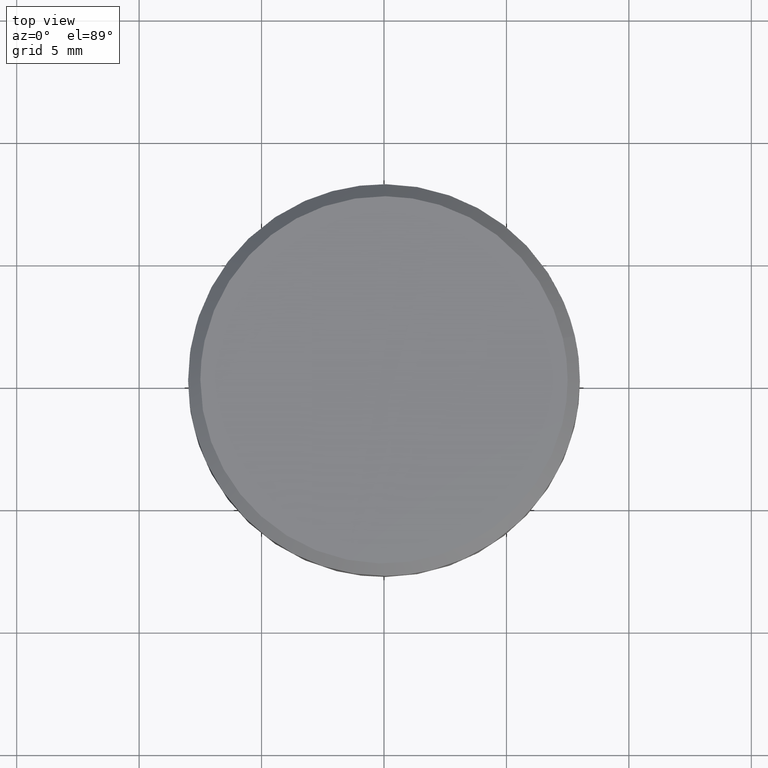
[diagram: clean part render]
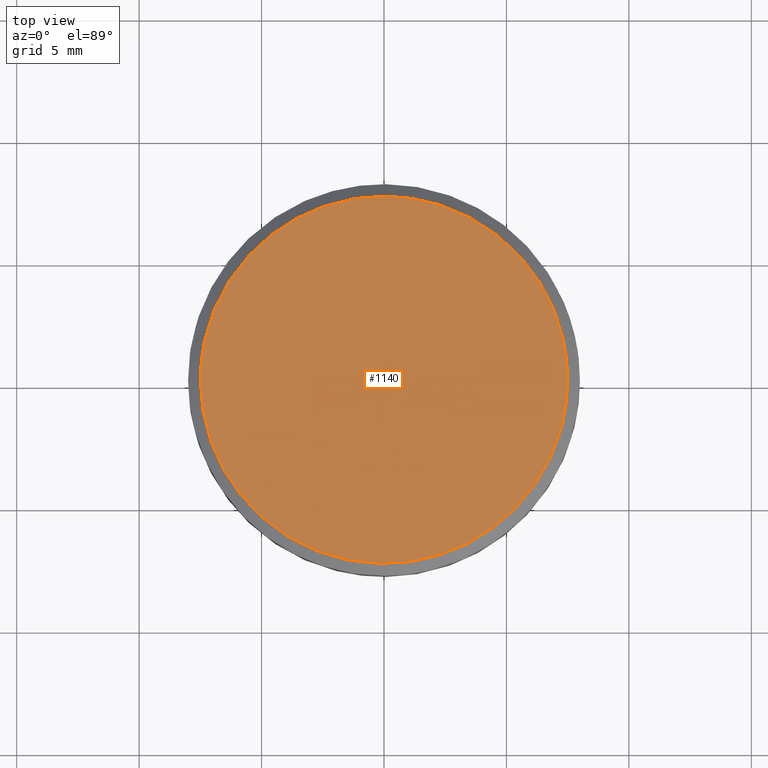
[diagram: same view with one face highlighted and labeled with its STEP entity id]
A machine part, top view. The second image highlights one B-rep face of the part: STEP entity #1140.
In plain terms, the highlighted face is a freeform B-spline surface patch.
Its self-contained STEP definition (entity closure, byte-faithful):
#273=CARTESIAN_POINT('',(7.306636148837367,1.692060338325562,9.499999999997908));
#274=VERTEX_POINT('',#273);
#280=CARTESIAN_POINT('',(7.500000000000000,0.0,9.500000000000000));
#281=VERTEX_POINT('',#280);
#282=CARTESIAN_POINT('',(7.500000000000000,0.0,9.500000000000000));
#283=CARTESIAN_POINT('',(7.500000000000000,0.857078705116508,9.500000000000000));
#284=CARTESIAN_POINT('',(7.306636148837367,1.692060338325562,9.499999999997908));
#292=(BOUNDED_CURVE()B_SPLINE_CURVE(2,(#282,#283,#284),.UNSPECIFIED.,.F.,.U.)B_SPLINE_CURVE_WITH_KNOTS((3,3),(0.500000000000000,0.538577028216185),.UNSPECIFIED.)CURVE()GEOMETRIC_REPRESENTATION_ITEM()RATIONAL_B_SPLINE_CURVE((1.0,0.954804200134017,0.923556557441499))REPRESENTATION_ITEM(''));
#293=EDGE_CURVE('',#281,#274,#292,.T.);
#295=CARTESIAN_POINT('',(-7.500000000000000,0.0,9.500000000000000));
#296=VERTEX_POINT('',#295);
#297=CARTESIAN_POINT('',(-7.500000000000000,0.0,9.500000000000000));
#298=CARTESIAN_POINT('',(-7.500000000000000,-7.500000000000000,9.500000000000000));
#299=CARTESIAN_POINT('',(0.0,-7.500000000000000,9.500000000000000));
#300=CARTESIAN_POINT('',(7.500000000000000,-7.500000000000000,9.500000000000000));
#301=CARTESIAN_POINT('',(7.500000000000000,0.0,9.500000000000000));
#309=(BOUNDED_CURVE()B_SPLINE_CURVE(2,(#297,#298,#299,#300,#301),.UNSPECIFIED.,.F.,.U.)B_SPLINE_CURVE_WITH_KNOTS((3,2,3),(0.0,0.250000000000000,0.500000000000000),.UNSPECIFIED.)CURVE()GEOMETRIC_REPRESENTATION_ITEM()RATIONAL_B_SPLINE_CURVE((1.0,0.707106781186547,1.0,0.707106781186547,1.0))REPRESENTATION_ITEM(''));
#310=EDGE_CURVE('',#296,#281,#309,.T.);
#312=CARTESIAN_POINT('',(0.065449016255933,7.499714422983592,9.499999999997533));
#313=VERTEX_POINT('',#312);
#314=CARTESIAN_POINT('',(0.065449016255933,7.499714422983592,9.499999999997533));
#315=CARTESIAN_POINT('',(0.032725131173370,7.500000000000000,9.500000000000000));
#316=CARTESIAN_POINT('',(0.0,7.500000000000000,9.500000000000000));
#317=CARTESIAN_POINT('',(-7.500000000000000,7.500000000000000,9.500000000000000));
#318=CARTESIAN_POINT('',(-7.500000000000000,0.0,9.500000000000000));
#326=(BOUNDED_CURVE()B_SPLINE_CURVE(2,(#314,#315,#316,#317,#318),.UNSPECIFIED.,.F.,.U.)B_SPLINE_CURVE_WITH_KNOTS((3,2,3),(0.748460105664162,0.750000000000000,1.0),.UNSPECIFIED.)CURVE()GEOMETRIC_REPRESENTATION_ITEM()RATIONAL_B_SPLINE_CURVE((0.996414028098437,0.998195901565376,1.0,0.707106781186547,1.0))REPRESENTATION_ITEM(''));
#327=EDGE_CURVE('',#313,#296,#326,.T.);
#429=CARTESIAN_POINT('',(7.306636148837367,1.692060338325561,9.499999999997908));
#430=CARTESIAN_POINT('',(5.973648138607844,7.448154350330355,9.500000000000002));
#431=CARTESIAN_POINT('',(0.065449016255933,7.499714422983592,9.499999999997533));
#439=(BOUNDED_CURVE()B_SPLINE_CURVE(2,(#429,#430,#431),.UNSPECIFIED.,.F.,.U.)B_SPLINE_CURVE_WITH_KNOTS((3,3),(0.538577028216184,0.748460105664162),.UNSPECIFIED.)CURVE()GEOMETRIC_REPRESENTATION_ITEM()RATIONAL_B_SPLINE_CURVE((0.923556557441500,0.753549905437415,0.996414028098437))REPRESENTATION_ITEM(''));
#440=EDGE_CURVE('',#274,#313,#439,.T.);
#1129=CARTESIAN_POINT('',(-8.249249970927089,8.248950187996025,9.500000000000000));
#1130=CARTESIAN_POINT('',(8.249250373258443,8.248950187996025,9.500000000000000));
#1131=CARTESIAN_POINT('',(-8.249249970927089,-8.249236111477014,9.500000000000000));
#1132=CARTESIAN_POINT('',(8.249250373258443,-8.249236111477014,9.500000000000000));
#1133=B_SPLINE_SURFACE_WITH_KNOTS('',1,1,((#1129,#1131),(#1130,#1132)),.UNSPECIFIED.,.F.,.F.,.U.,(2,2),(2,2),(0.0,16.498500344185530),(0.0,16.498186299473041),.UNSPECIFIED.);
#1134=ORIENTED_EDGE('',*,*,#310,.T.);
#1135=ORIENTED_EDGE('',*,*,#293,.T.);
#1136=ORIENTED_EDGE('',*,*,#440,.T.);
#1137=ORIENTED_EDGE('',*,*,#327,.T.);
#1138=EDGE_LOOP('',(#1134,#1135,#1136,#1137));
#1139=FACE_OUTER_BOUND('',#1138,.T.);
#1140=ADVANCED_FACE('',(#1139),#1133,.F.);